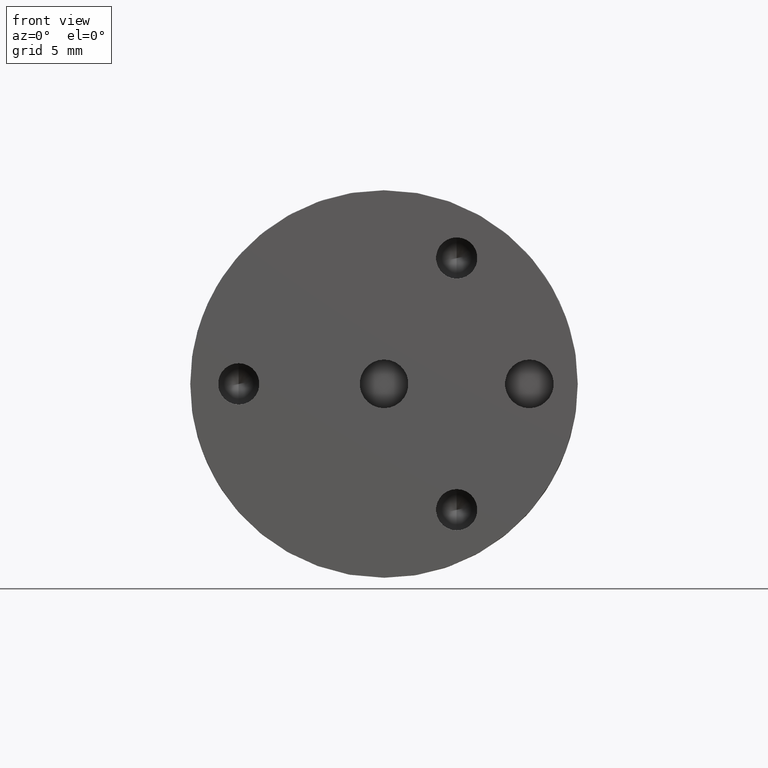
[diagram: clean part render]
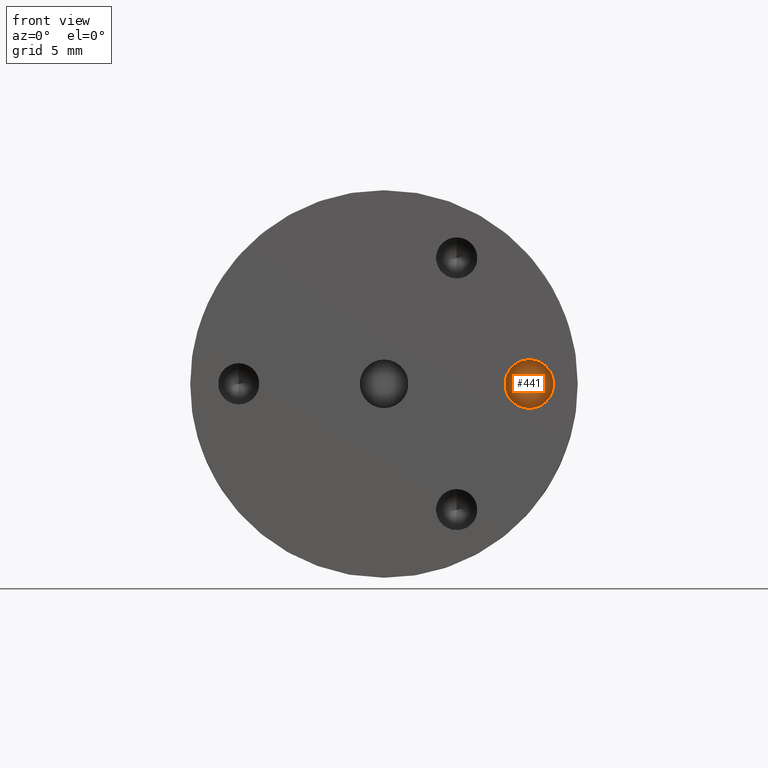
[diagram: same view with one face highlighted and labeled with its STEP entity id]
A machine part, front view. The second image highlights one B-rep face of the part: STEP entity #441.
In plain terms, the highlighted planar face has unit normal (0, 1, 0).
Its self-contained STEP definition (entity closure, byte-faithful):
#50 = DIRECTION ( 'NONE',  ( -0.0000000000000000000, -1.000000000000000000, -0.0000000000000000000 ) ) ;
#72 = VERTEX_POINT ( 'NONE', #634 ) ;
#91 = VERTEX_POINT ( 'NONE', #570 ) ;
#101 = DIRECTION ( 'NONE',  ( 0.0000000000000000000, -0.0000000000000000000, 1.000000000000000000 ) ) ;
#234 = ORIENTED_EDGE ( 'NONE', *, *, #407, .T. ) ;
#253 = DIRECTION ( 'NONE',  ( 0.0000000000000000000, 0.0000000000000000000, -1.000000000000000000 ) ) ;
#277 = CARTESIAN_POINT ( 'NONE',  ( 9.524999999999998579, 4.320000000000000284, 0.0000000000000000000 ) ) ;
#349 = DIRECTION ( 'NONE',  ( 0.0000000000000000000, 1.000000000000000000, 0.0000000000000000000 ) ) ;
#362 = CIRCLE ( 'NONE', #684, 1.593999999999998085 ) ;
#378 = EDGE_LOOP ( 'NONE', ( #234, #458 ) ) ;
#400 = PLANE ( 'NONE',  #428 ) ;
#407 = EDGE_CURVE ( 'NONE', #91, #72, #504, .T. ) ;
#428 = AXIS2_PLACEMENT_3D ( 'NONE', #277, #349, #101 ) ;
#441 = ADVANCED_FACE ( 'NONE', ( #612 ), #400, .F. ) ;
#443 = DIRECTION ( 'NONE',  ( -0.0000000000000000000, -1.000000000000000000, -0.0000000000000000000 ) ) ;
#452 = AXIS2_PLACEMENT_3D ( 'NONE', #764, #443, #253 ) ;
#458 = ORIENTED_EDGE ( 'NONE', *, *, #500, .T. ) ;
#473 = CARTESIAN_POINT ( 'NONE',  ( 9.525000000000000355, 4.320000000000000284, 0.0000000000000000000 ) ) ;
#500 = EDGE_CURVE ( 'NONE', #72, #91, #362, .T. ) ;
#504 = CIRCLE ( 'NONE', #452, 1.593999999999998085 ) ;
#529 = DIRECTION ( 'NONE',  ( 0.0000000000000000000, 0.0000000000000000000, -1.000000000000000000 ) ) ;
#570 = CARTESIAN_POINT ( 'NONE',  ( 9.525000000000000355, 4.320000000000000284, -1.593999999999998085 ) ) ;
#612 = FACE_OUTER_BOUND ( 'NONE', #378, .T. ) ;
#634 = CARTESIAN_POINT ( 'NONE',  ( 9.525000000000000355, 4.320000000000000284, 1.593999999999998085 ) ) ;
#684 = AXIS2_PLACEMENT_3D ( 'NONE', #473, #50, #529 ) ;
#764 = CARTESIAN_POINT ( 'NONE',  ( 9.525000000000000355, 4.320000000000000284, 0.0000000000000000000 ) ) ;